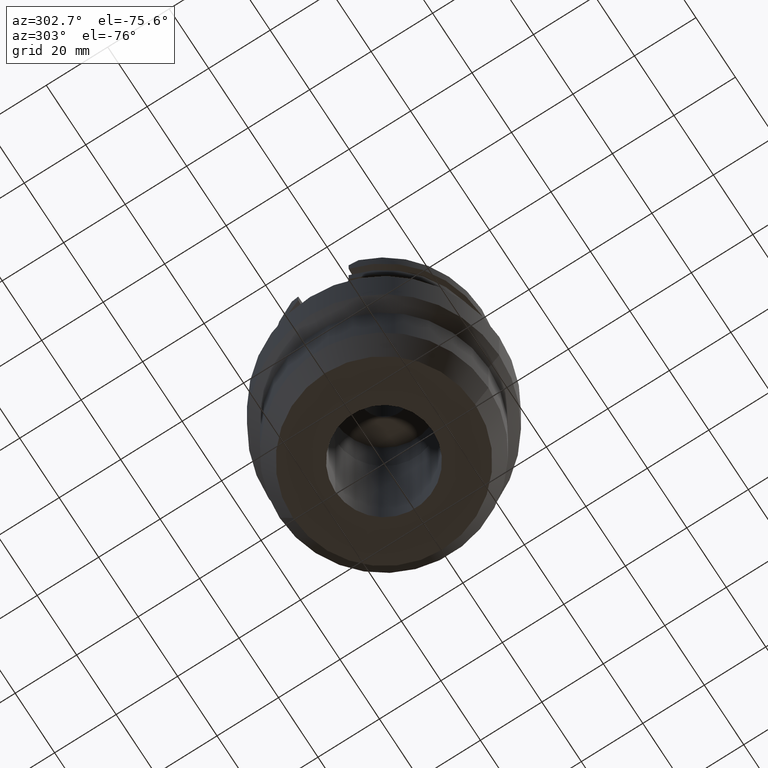
[diagram: clean part render]
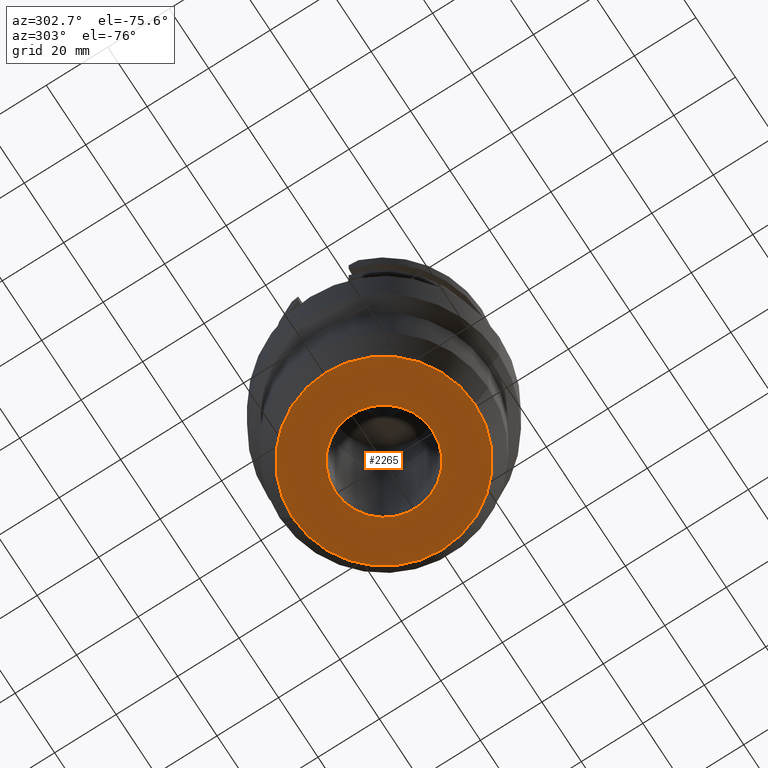
[diagram: same view with one face highlighted and labeled with its STEP entity id]
A machine part, auxiliary view. The second image highlights one B-rep face of the part: STEP entity #2265.
In plain terms, the highlighted planar face has unit normal (0, 0, -1).
Its self-contained STEP definition (entity closure, byte-faithful):
#1012=CARTESIAN_POINT('',(0.E0,0.E0,-1.016E2));
#1013=DIRECTION('',(0.E0,0.E0,1.E0));
#1014=DIRECTION('',(0.E0,-1.E0,0.E0));
#1015=AXIS2_PLACEMENT_3D('',#1012,#1013,#1014);
#1020=CARTESIAN_POINT('',(0.E0,0.E0,-1.016E2));
#1021=DIRECTION('',(0.E0,0.E0,1.E0));
#1022=DIRECTION('',(0.E0,1.E0,0.E0));
#1023=AXIS2_PLACEMENT_3D('',#1020,#1021,#1022);
#1028=CARTESIAN_POINT('',(0.E0,2.164471368983E-14,-1.016E2));
#1029=DIRECTION('',(0.E0,0.E0,-1.E0));
#1030=DIRECTION('',(0.E0,-1.E0,0.E0));
#1031=AXIS2_PLACEMENT_3D('',#1028,#1029,#1030);
#1036=CARTESIAN_POINT('',(0.E0,2.164471368983E-14,-1.016E2));
#1037=DIRECTION('',(0.E0,0.E0,-1.E0));
#1038=DIRECTION('',(0.E0,1.E0,0.E0));
#1039=AXIS2_PLACEMENT_3D('',#1036,#1037,#1038);
#1316=CARTESIAN_POINT('',(0.E0,1.5875E1,-1.016E2));
#1317=VERTEX_POINT('',#1316);
#1318=CARTESIAN_POINT('',(0.E0,-1.5875E1,-1.016E2));
#1319=VERTEX_POINT('',#1318);
#1320=CARTESIAN_POINT('',(0.E0,-2.96735E1,-1.016E2));
#1321=CARTESIAN_POINT('',(0.E0,2.96735E1,-1.016E2));
#1322=VERTEX_POINT('',#1320);
#1323=VERTEX_POINT('',#1321);
#2250=CARTESIAN_POINT('',(0.E0,0.E0,-1.016E2));
#2251=DIRECTION('',(0.E0,0.E0,-1.E0));
#2252=DIRECTION('',(0.E0,-1.E0,0.E0));
#2253=AXIS2_PLACEMENT_3D('',#2250,#2251,#2252);
#2254=PLANE('',#2253);
#2255=ORIENTED_EDGE('',*,*,#2229,.T.);
#2256=ORIENTED_EDGE('',*,*,#2245,.T.);
#2257=EDGE_LOOP('',(#2255,#2256));
#2258=FACE_OUTER_BOUND('',#2257,.F.);
#2260=ORIENTED_EDGE('',*,*,#2259,.T.);
#2262=ORIENTED_EDGE('',*,*,#2261,.T.);
#2263=EDGE_LOOP('',(#2260,#2262));
#2264=FACE_BOUND('',#2263,.F.);
#1016=CIRCLE('',#1015,2.96735E1);
#1024=CIRCLE('',#1023,2.96735E1);
#1032=CIRCLE('',#1031,1.5875E1);
#1040=CIRCLE('',#1039,1.5875E1);
#2229=EDGE_CURVE('',#1322,#1323,#1016,.T.);
#2245=EDGE_CURVE('',#1323,#1322,#1024,.T.);
#2259=EDGE_CURVE('',#1319,#1317,#1032,.T.);
#2261=EDGE_CURVE('',#1317,#1319,#1040,.T.);
#2265=ADVANCED_FACE('',(#2258,#2264),#2254,.T.);